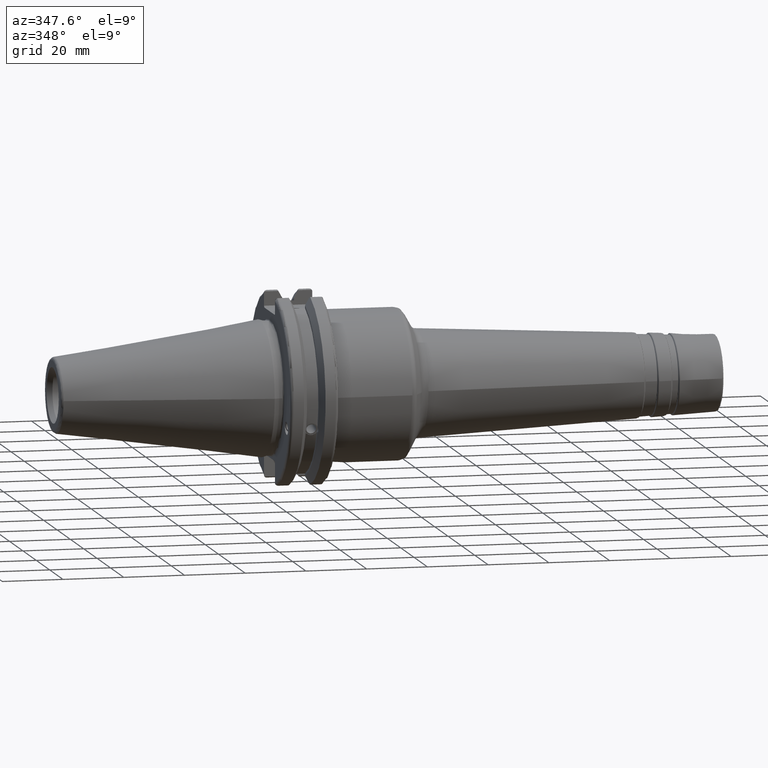
[diagram: clean part render]
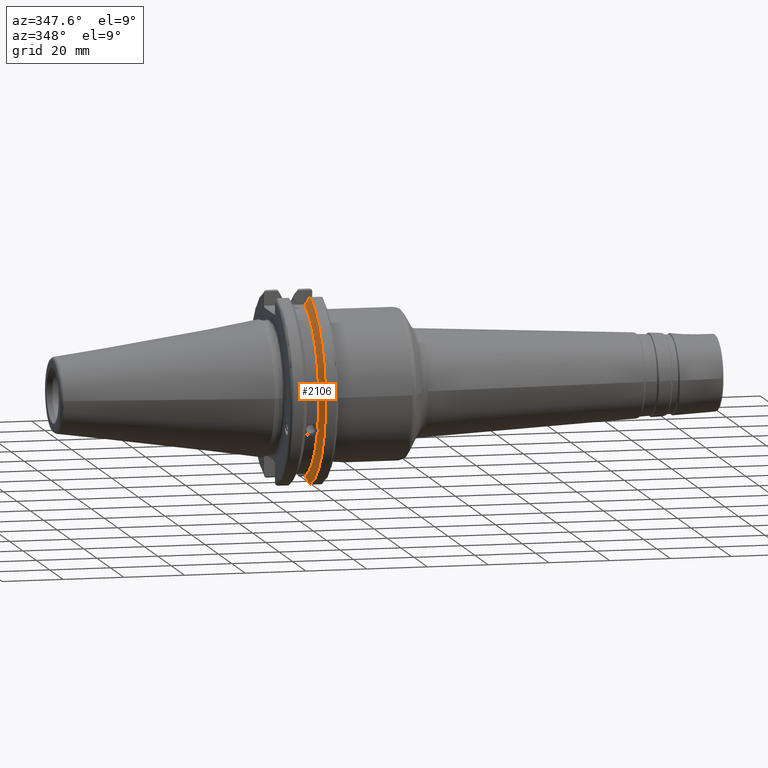
[diagram: same view with one face highlighted and labeled with its STEP entity id]
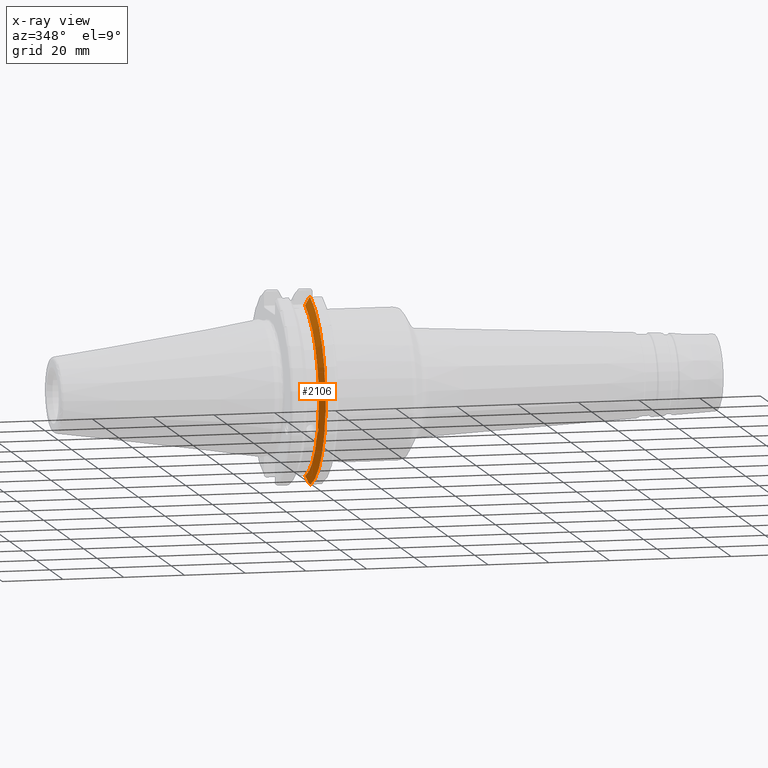
[diagram: x-ray of the same camera — body ghosted, the highlighted face saturated]
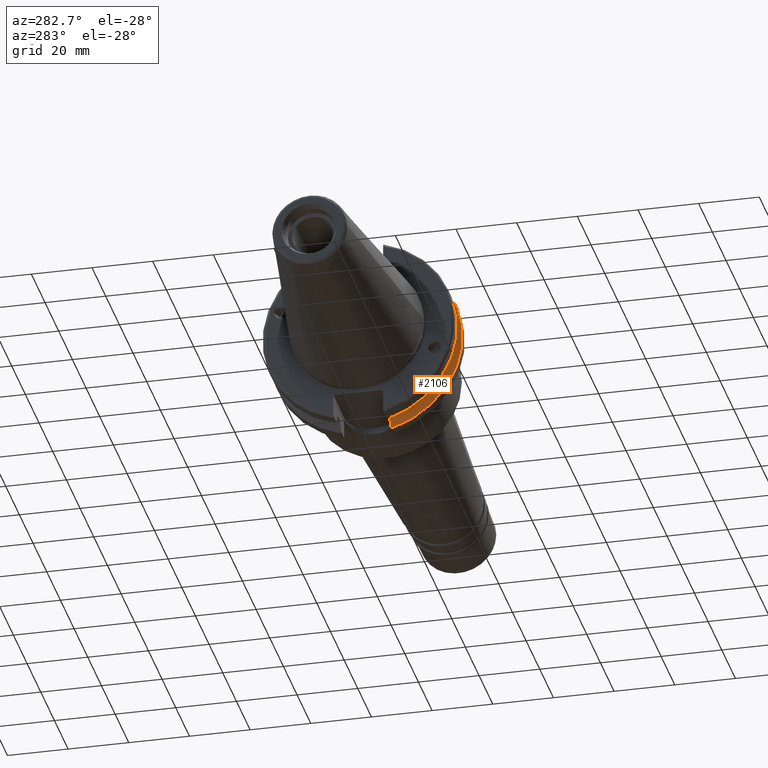
[diagram: same view with one face highlighted and labeled with its STEP entity id]
A machine part, auxiliary view. The second image highlights one B-rep face of the part: STEP entity #2106.
The next image is the same camera in x-ray: the body ghosted, the highlighted face saturated — about 0% of this face is hidden behind the body in this view.
A second angle (auxiliary view) of the same face is appended — the face is thin or edge-on in the first view.
In plain terms, the highlighted conical surface has half-angle 60 deg.
Its self-contained STEP definition (entity closure, byte-faithful):
#15=(
BOUNDED_CURVE()
B_SPLINE_CURVE(2,(#3690,#3691,#3692),.UNSPECIFIED.,.F.,.F.)
B_SPLINE_CURVE_WITH_KNOTS((3,3),(0.,0.276549142795512),.UNSPECIFIED.)
CURVE()
GEOMETRIC_REPRESENTATION_ITEM()
RATIONAL_B_SPLINE_CURVE((1.,1.00095203904184,1.00031614445102))
REPRESENTATION_ITEM('')
);
#16=(
BOUNDED_CURVE()
B_SPLINE_CURVE(2,(#3694,#3695,#3696),.UNSPECIFIED.,.F.,.F.)
B_SPLINE_CURVE_WITH_KNOTS((3,3),(0.,0.0639048713675663),.UNSPECIFIED.)
CURVE()
GEOMETRIC_REPRESENTATION_ITEM()
RATIONAL_B_SPLINE_CURVE((1.,1.00028444218286,1.00047644010578))
REPRESENTATION_ITEM('')
);
#17=(
BOUNDED_CURVE()
B_SPLINE_CURVE(2,(#3700,#3701,#3702),.UNSPECIFIED.,.F.,.F.)
B_SPLINE_CURVE_WITH_KNOTS((3,3),(0.329353533631206,0.393258405001023),
 .UNSPECIFIED.)
CURVE()
GEOMETRIC_REPRESENTATION_ITEM()
RATIONAL_B_SPLINE_CURVE((1.00047644010579,1.00028444218287,1.))
REPRESENTATION_ITEM('')
);
#18=(
BOUNDED_CURVE()
B_SPLINE_CURVE(2,(#3704,#3705,#3706),.UNSPECIFIED.,.F.,.F.)
B_SPLINE_CURVE_WITH_KNOTS((3,3),(0.0550586467393779,0.331607789535852),
 .UNSPECIFIED.)
CURVE()
GEOMETRIC_REPRESENTATION_ITEM()
RATIONAL_B_SPLINE_CURVE((1.00031614444922,1.00095203903643,1.))
REPRESENTATION_ITEM('')
);
#126=B_SPLINE_CURVE_WITH_KNOTS('',3,(#3592,#3593,#3594,#3595,#3596,#3597,
#3598,#3599),.UNSPECIFIED.,.F.,.F.,(4,2,2,4),(0.451995700189024,0.464547828547662,
0.504528771685167,0.544509714822672),.UNSPECIFIED.);
#130=B_SPLINE_CURVE_WITH_KNOTS('',3,(#3654,#3655,#3656,#3657,#3658,#3659,
#3660,#3661),.UNSPECIFIED.,.F.,.F.,(4,2,2,4),(0.544509714822672,0.584490657960177,
0.624471601097683,0.637023729456322),.UNSPECIFIED.);
#225=FACE_OUTER_BOUND('',#338,.T.);
#338=EDGE_LOOP('',(#1666,#1667,#1668,#1669,#1670,#1671,#1672,#1673,#1674));
#715=CIRCLE('',#2350,28.9593772964944);
#716=CIRCLE('',#2351,31.75);
#717=CIRCLE('',#2352,28.9593772964944);
#891=VERTEX_POINT('',#3589);
#892=VERTEX_POINT('',#3591);
#899=VERTEX_POINT('',#3652);
#908=VERTEX_POINT('',#3687);
#909=VERTEX_POINT('',#3689);
#910=VERTEX_POINT('',#3693);
#911=VERTEX_POINT('',#3697);
#912=VERTEX_POINT('',#3699);
#913=VERTEX_POINT('',#3703);
#1168=EDGE_CURVE('',#892,#891,#126,.T.);
#1176=EDGE_CURVE('',#891,#899,#130,.T.);
#1188=EDGE_CURVE('',#899,#908,#715,.T.);
#1189=EDGE_CURVE('',#908,#909,#15,.T.);
#1190=EDGE_CURVE('',#910,#909,#16,.T.);
#1191=EDGE_CURVE('',#911,#910,#716,.T.);
#1192=EDGE_CURVE('',#912,#911,#17,.T.);
#1193=EDGE_CURVE('',#912,#913,#18,.T.);
#1194=EDGE_CURVE('',#913,#892,#717,.T.);
#1666=ORIENTED_EDGE('',*,*,#1168,.T.);
#1667=ORIENTED_EDGE('',*,*,#1176,.T.);
#1668=ORIENTED_EDGE('',*,*,#1188,.T.);
#1669=ORIENTED_EDGE('',*,*,#1189,.T.);
#1670=ORIENTED_EDGE('',*,*,#1190,.F.);
#1671=ORIENTED_EDGE('',*,*,#1191,.F.);
#1672=ORIENTED_EDGE('',*,*,#1192,.F.);
#1673=ORIENTED_EDGE('',*,*,#1193,.T.);
#1674=ORIENTED_EDGE('',*,*,#1194,.T.);
#2053=CONICAL_SURFACE('',#2349,30.3546886482472,1.0471975511966);
#2106=ADVANCED_FACE('',(#225),#2053,.T.);
#2349=AXIS2_PLACEMENT_3D('',#3686,#2845,#2846);
#2350=AXIS2_PLACEMENT_3D('',#3688,#2847,#2848);
#2351=AXIS2_PLACEMENT_3D('',#3698,#2849,#2850);
#2352=AXIS2_PLACEMENT_3D('',#3707,#2851,#2852);
#2845=DIRECTION('center_axis',(1.,0.,0.));
#2846=DIRECTION('ref_axis',(0.,-1.,-1.22464679914735E-16));
#2847=DIRECTION('center_axis',(1.,0.,0.));
#2848=DIRECTION('ref_axis',(0.,0.,-1.));
#2849=DIRECTION('center_axis',(1.,0.,0.));
#2850=DIRECTION('ref_axis',(0.,0.,-1.));
#2851=DIRECTION('center_axis',(1.,0.,0.));
#2852=DIRECTION('ref_axis',(0.,0.,-1.));
#3589=CARTESIAN_POINT('',(13.2341,-27.51401829017,-10.0142836826778));
#3591=CARTESIAN_POINT('',(13.0491,-27.4956274489925,-9.09043478536245));
#3592=CARTESIAN_POINT('Ctrl Pts',(13.0491,-27.4956274489925,-9.09043478536245));
#3593=CARTESIAN_POINT('Ctrl Pts',(13.0632204071996,-27.5087667900418,-9.12860597076217));
#3594=CARTESIAN_POINT('Ctrl Pts',(13.0766929817857,-27.5206055003513,-9.16696618806877));
#3595=CARTESIAN_POINT('Ctrl Pts',(13.130081441159,-27.5642934663232,-9.32791534028656));
#3596=CARTESIAN_POINT('Ctrl Pts',(13.1682197084175,-27.5867382255984,-9.46717946402648));
#3597=CARTESIAN_POINT('Ctrl Pts',(13.2204106446058,-27.5847569104122,-9.74771639360671));
#3598=CARTESIAN_POINT('Ctrl Pts',(13.2341,-27.559599249844,-9.8890510252165));
#3599=CARTESIAN_POINT('Ctrl Pts',(13.2341,-27.51401829017,-10.0142836826777));
#3652=CARTESIAN_POINT('',(13.0491,-26.9060914640648,-10.7101715919071));
#3654=CARTESIAN_POINT('Ctrl Pts',(13.2341,-27.51401829017,-10.0142836826777));
#3655=CARTESIAN_POINT('Ctrl Pts',(13.2341,-27.4684373304961,-10.139516340139));
#3656=CARTESIAN_POINT('Ctrl Pts',(13.2204106446058,-27.3968610665578,-10.2639559818059));
#3657=CARTESIAN_POINT('Ctrl Pts',(13.1682197084175,-27.2180531796526,-10.4801333026531));
#3658=CARTESIAN_POINT('Ctrl Pts',(13.130081441159,-27.1113422433189,-10.5723885976054));
#3659=CARTESIAN_POINT('Ctrl Pts',(13.0766929817857,-26.9744191989197,-10.6676007180673));
#3660=CARTESIAN_POINT('Ctrl Pts',(13.0632204071996,-26.9406927482839,-10.6893765730703));
#3661=CARTESIAN_POINT('Ctrl Pts',(13.0491,-26.9060914640648,-10.7101715919071));
#3686=CARTESIAN_POINT('Origin',(13.8546833845378,0.,0.));
#3687=CARTESIAN_POINT('',(13.0491,-8.19,-27.7771386827498));
#3688=CARTESIAN_POINT('Origin',(13.0491,0.,0.));
#3689=CARTESIAN_POINT('',(14.3815146964874,-8.19,-30.1755016258903));
#3690=CARTESIAN_POINT('Ctrl Pts',(13.0491,-8.19,-27.7771386827498));
#3691=CARTESIAN_POINT('Ctrl Pts',(13.68773643849,-8.19,-28.9303689539956));
#3692=CARTESIAN_POINT('Ctrl Pts',(14.3815146964874,-8.19,-30.1755016258903));
#3693=CARTESIAN_POINT('',(14.6602667690756,-8.67204822802686,-30.5427254764662));
#3694=CARTESIAN_POINT('Ctrl Pts',(14.6602667690756,-8.67204822802687,-30.5427254764662));
#3695=CARTESIAN_POINT('Ctrl Pts',(14.5192085187837,-8.42917748262644,-30.357706789263));
#3696=CARTESIAN_POINT('Ctrl Pts',(14.3815146964874,-8.19,-30.1755016258903));
#3697=CARTESIAN_POINT('',(14.6602667690756,-8.67204822802685,30.5427254764662));
#3698=CARTESIAN_POINT('Origin',(14.6602667690756,0.,0.));
#3699=CARTESIAN_POINT('',(14.3815146964874,-8.19,30.1755016258903));
#3700=CARTESIAN_POINT('Ctrl Pts',(14.3815146964874,-8.19,30.1755016258903));
#3701=CARTESIAN_POINT('Ctrl Pts',(14.5192085187884,-8.42917748263465,30.3577067892692));
#3702=CARTESIAN_POINT('Ctrl Pts',(14.6602667690756,-8.67204822802686,30.5427254764662));
#3703=CARTESIAN_POINT('',(13.0491,-8.19,27.7771386827498));
#3704=CARTESIAN_POINT('Ctrl Pts',(14.3815146964874,-8.19,30.1755016258903));
#3705=CARTESIAN_POINT('Ctrl Pts',(13.687736438474,-8.19,28.9303689539668));
#3706=CARTESIAN_POINT('Ctrl Pts',(13.0491,-8.19,27.7771386827498));
#3707=CARTESIAN_POINT('Origin',(13.0491,0.,0.));